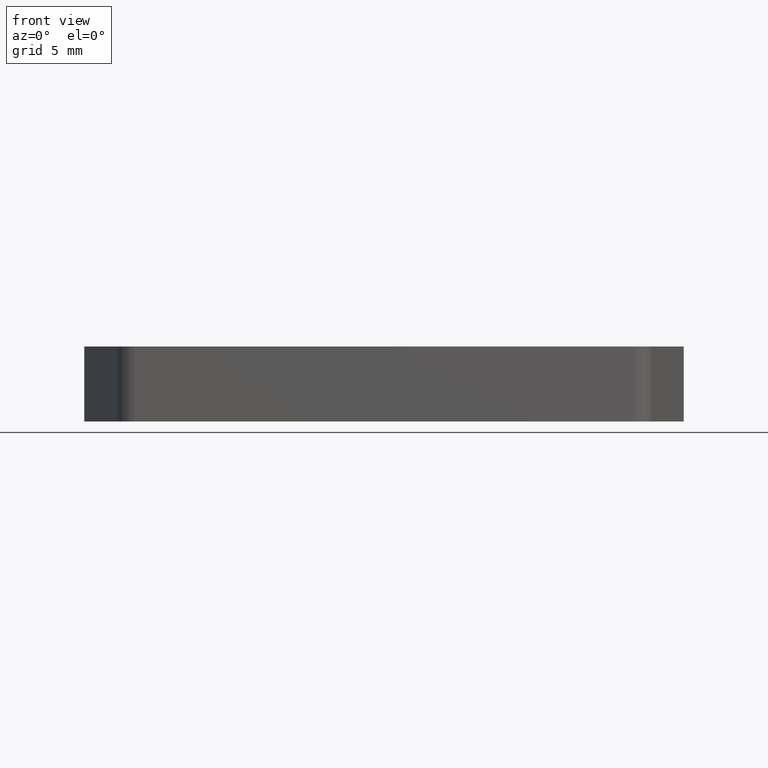
[diagram: clean part render]
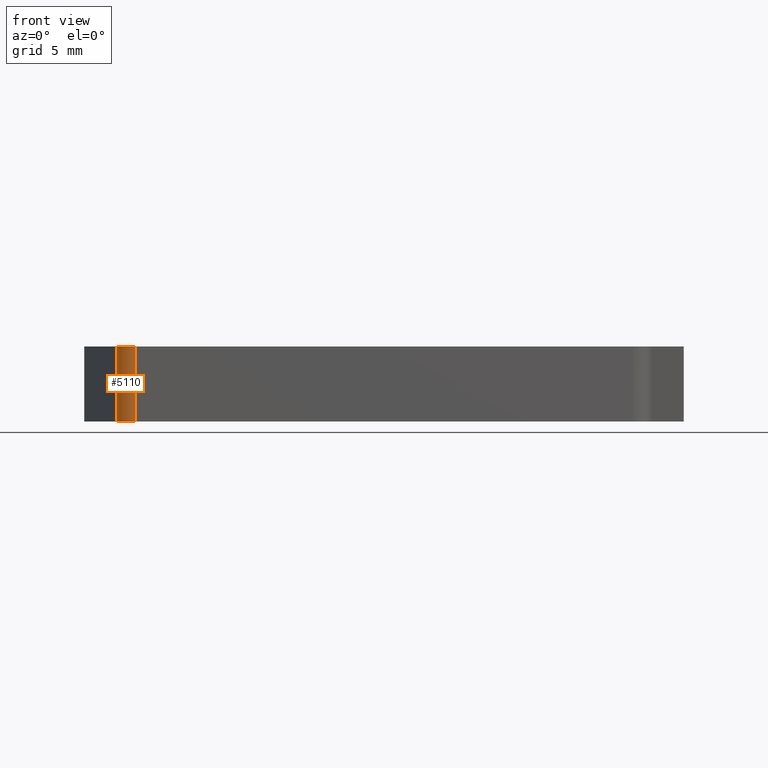
[diagram: same view with one face highlighted and labeled with its STEP entity id]
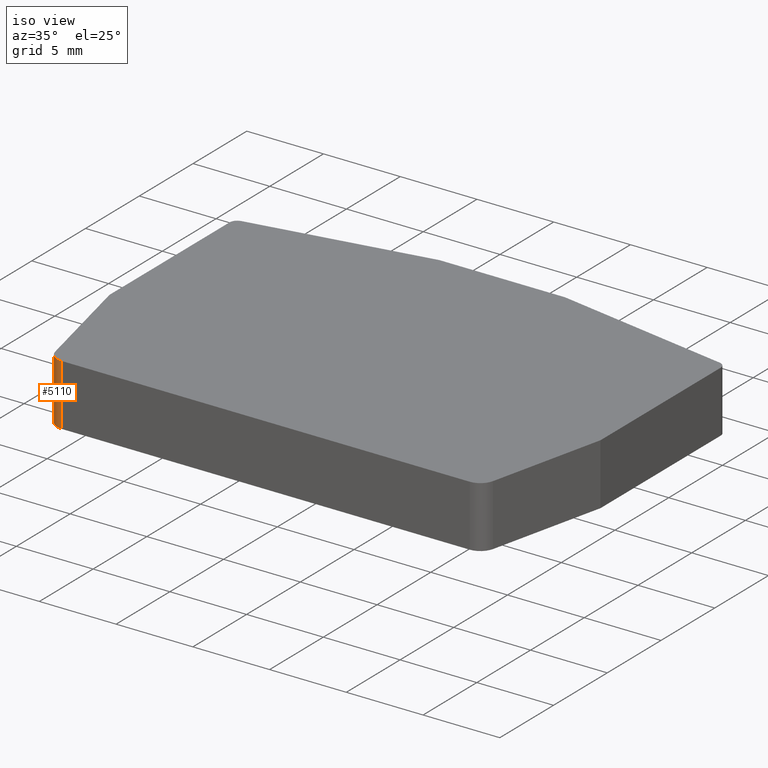
[diagram: same view with one face highlighted and labeled with its STEP entity id]
A machine part, front view. The second image highlights one B-rep face of the part: STEP entity #5110.
A second angle (iso view) of the same face is appended — the face is thin or edge-on in the first view.
In plain terms, the highlighted cylindrical surface (edge-blend (fillet) strip) has radius 1 mm, axis along (0, 0, 1).
Its self-contained STEP definition (entity closure, byte-faithful):
#530=CARTESIAN_POINT('',(-65.6150559085246,0.794364607063827,0.));
#540=VERTEX_POINT('',#530);
#570=CARTESIAN_POINT('',(-64.6406858437394,1.01931566140772,0.));
#580=DIRECTION('',(0.,0.,1.));
#590=DIRECTION('',(1.,0.,0.));
#600=AXIS2_PLACEMENT_3D('',#570,#580,#590);
#610=CIRCLE('',#600,1.);
#620=CARTESIAN_POINT('',(-64.6406858437394,0.0193156614077168,0.));
#630=VERTEX_POINT('',#620);
#640=EDGE_CURVE('',#540,#630,#610,.T.);
#1610=CARTESIAN_POINT('',(-64.6406858437394,0.0193156614077168,4.));
#1620=VERTEX_POINT('',#1610);
#1650=CARTESIAN_POINT('',(-64.6406858437394,1.01931566140772,4.));
#1660=DIRECTION('',(0.,0.,1.));
#1670=DIRECTION('',(1.,0.,0.));
#1680=AXIS2_PLACEMENT_3D('',#1650,#1660,#1670);
#1690=CIRCLE('',#1680,1.);
#1700=CARTESIAN_POINT('',(-65.6150559085246,0.794364607063827,4.));
#1710=VERTEX_POINT('',#1700);
#1720=EDGE_CURVE('',#1710,#1620,#1690,.T.);
#2360=CARTESIAN_POINT('',(-64.6406858437394,0.0193156614077168,0.));
#2370=DIRECTION('',(0.,0.,1.));
#2380=VECTOR('',#2370,1.);
#2390=LINE('',#2360,#2380);
#2400=EDGE_CURVE('',#630,#1620,#2390,.T.);
#4830=CARTESIAN_POINT('',(-65.6150559085246,0.794364607063827,0.));
#4840=DIRECTION('',(0.,0.,1.));
#4850=VECTOR('',#4840,1.);
#4860=LINE('',#4830,#4850);
#4870=EDGE_CURVE('',#540,#1710,#4860,.T.);
#5000=CARTESIAN_POINT('',(-64.6406858437394,1.01931566140772,0.));
#5010=DIRECTION('',(0.,0.,1.));
#5020=DIRECTION('',(1.,0.,0.));
#5030=AXIS2_PLACEMENT_3D('',#5000,#5010,#5020);
#5040=CYLINDRICAL_SURFACE('',#5030,1.);
#5050=ORIENTED_EDGE('',*,*,#4870,.F.);
#5060=ORIENTED_EDGE('',*,*,#1720,.F.);
#5070=ORIENTED_EDGE('',*,*,#2400,.T.);
#5080=ORIENTED_EDGE('',*,*,#640,.T.);
#5090=EDGE_LOOP('',(#5080,#5070,#5060,#5050));
#5100=FACE_OUTER_BOUND('',#5090,.T.);
#5110=ADVANCED_FACE('',(#5100),#5040,.T.);